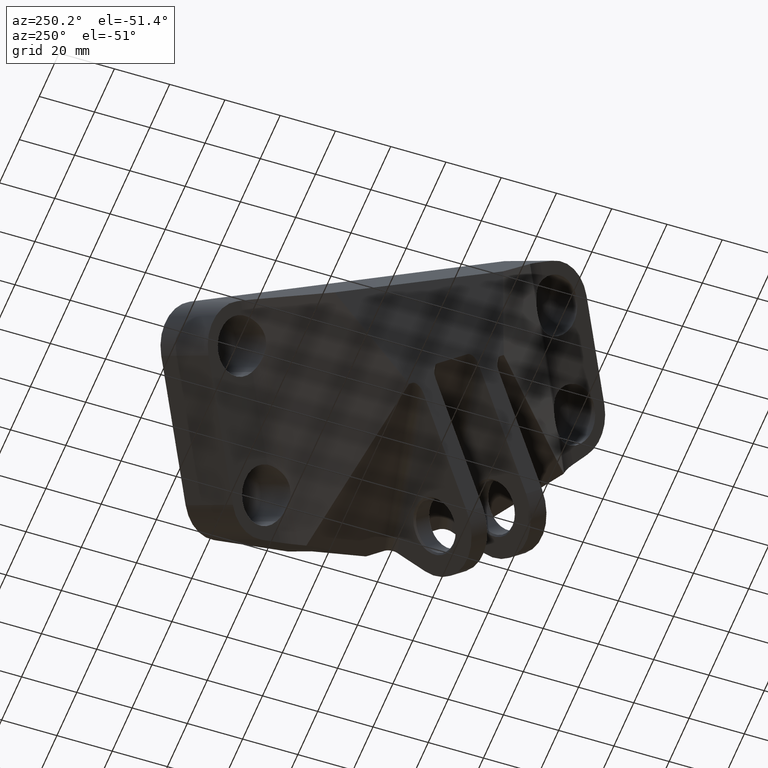
[diagram: clean part render]
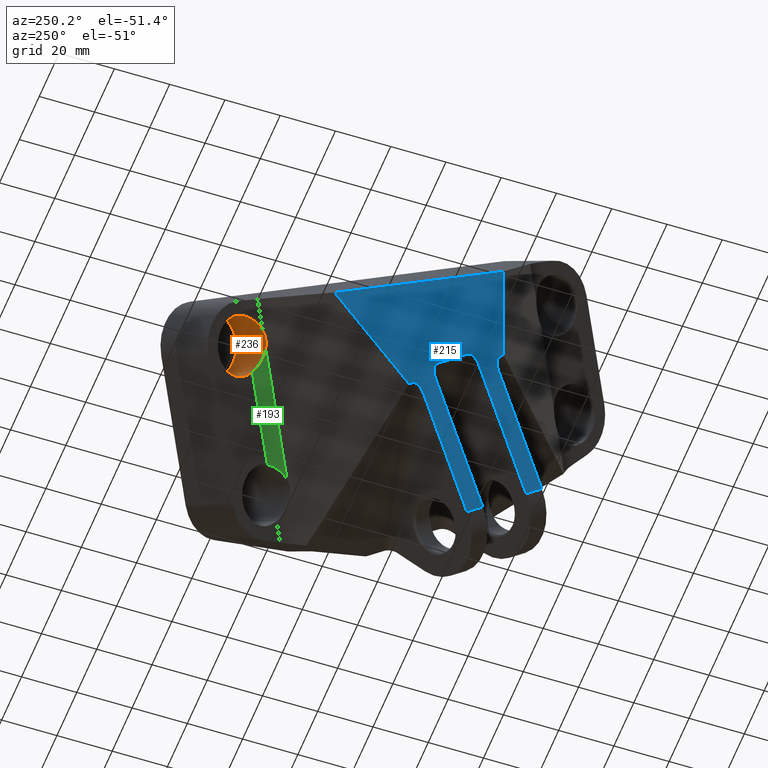
[diagram: same view with three faces highlighted in distinct colors, each labeled with its STEP entity id]
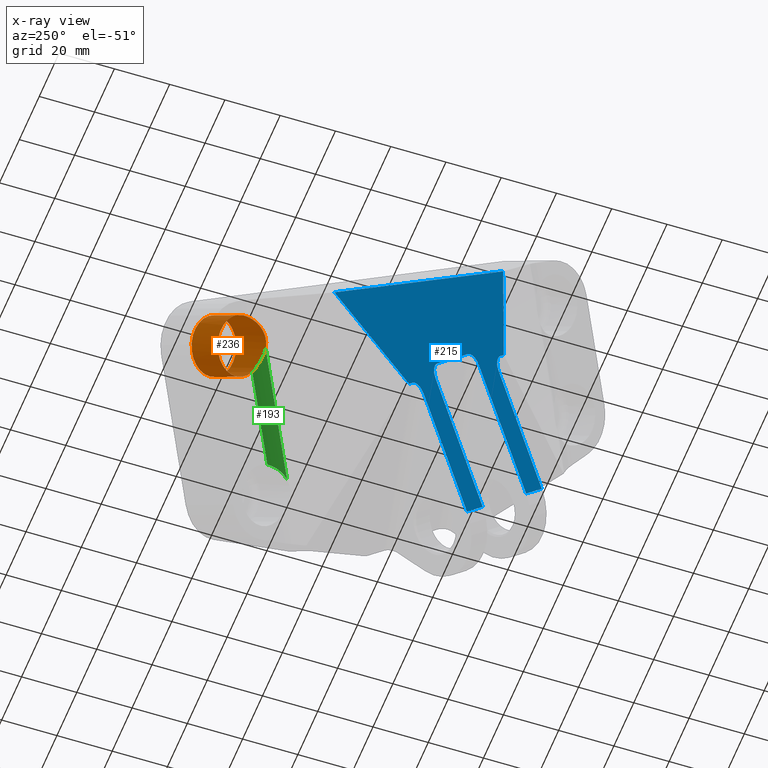
[diagram: x-ray of the same camera — body ghosted, the three highlighted faces saturated]
A machine part, auxiliary view with three faces highlighted in distinct colors.
The next image is the same camera in x-ray (body ghosted, the three faces saturated) — at least one of them is partly hidden behind the body in this view.
Their STEP definitions:

[orange] entity #236 — the highlighted cylindrical surface (bore or boss wall) has radius 10.541 mm, axis along (-0.6626, -0.4963, -0.561).
#107=ELLIPSE('',#1141,0.479200723427388,0.415);
#121=B_SPLINE_CURVE_WITH_KNOTS('',3,(#1607,#1608,#1609,#1610),.UNSPECIFIED.,
 .F.,.F.,(4,4),(0.,1.),.UNSPECIFIED.);
#123=B_SPLINE_CURVE_WITH_KNOTS('',3,(#1623,#1624,#1625,#1626),.UNSPECIFIED.,
 .F.,.F.,(4,4),(0.,1.),.UNSPECIFIED.);
#151=CYLINDRICAL_SURFACE('',#1218,0.415);
#236=ADVANCED_FACE('',(#309,#310),#151,.F.);
#309=FACE_BOUND('',#397,.T.);
#310=FACE_BOUND('',#398,.T.);
#397=EDGE_LOOP('',(#815));
#398=EDGE_LOOP('',(#816,#817,#818,#819));
#815=ORIENTED_EDGE('',*,*,#1069,.T.);
#816=ORIENTED_EDGE('',*,*,#976,.F.);
#817=ORIENTED_EDGE('',*,*,#983,.F.);
#818=ORIENTED_EDGE('',*,*,#971,.F.);
#819=ORIENTED_EDGE('',*,*,#966,.F.);
#862=VERTEX_POINT('',#1598);
#863=VERTEX_POINT('',#1600);
#865=VERTEX_POINT('',#1611);
#868=VERTEX_POINT('',#1622);
#931=VERTEX_POINT('',#1840);
#966=EDGE_CURVE('',#862,#863,#1088,.T.);
#971=EDGE_CURVE('',#863,#865,#121,.T.);
#976=EDGE_CURVE('',#868,#862,#123,.T.);
#983=EDGE_CURVE('',#865,#868,#107,.T.);
#1069=EDGE_CURVE('',#931,#931,#1109,.T.);
#1088=CIRCLE('',#1135,0.415);
#1109=CIRCLE('',#1217,0.415);
#1135=AXIS2_PLACEMENT_3D('',#1599,#1287,#1288);
#1141=AXIS2_PLACEMENT_3D('',#1639,#1310,#1311);
#1217=AXIS2_PLACEMENT_3D('',#1839,#1509,#1510);
#1218=AXIS2_PLACEMENT_3D('',#1841,#1511,#1512);
#1287=DIRECTION('',(-2.51693220908285E-016,-0.662599371078657,-0.748974013865747));
#1288=DIRECTION('',(0.,0.748974013865747,-0.662599371078657));
#1310=DIRECTION('',(0.500000000000002,-0.573827887885708,-0.648630522782135));
#1311=DIRECTION('',(0.866025403784438,0.331299685539349,0.374487006932858));
#1509=DIRECTION('',(4.77569372936415E-015,-0.662599371078666,-0.748974013865739));
#1510=DIRECTION('',(0.,0.748974013865739,-0.662599371078667));
#1511=DIRECTION('',(-4.77569372936415E-015,0.662599371078666,0.748974013865739));
#1512=DIRECTION('',(0.,-0.748974013865739,0.662599371078667));
#1598=CARTESIAN_POINT('',(-5.68443688814112,0.86001637109303,0.462000054047476));
#1599=CARTESIAN_POINT('',(-5.8290000000006,1.15137256368192,0.204244208857477));
#1600=CARTESIAN_POINT('',(-5.68443688814116,1.44272875627087,-0.0535116363324661));
#1607=CARTESIAN_POINT('',(-5.68443688814116,1.44272875627087,-0.0535116363324661));
#1608=CARTESIAN_POINT('',(-5.56439674584728,1.40931746685769,-0.0239534688366839));
#1609=CARTESIAN_POINT('',(-5.47343239851194,1.36677005855921,0.0730660730058778));
#1610=CARTESIAN_POINT('',(-5.43443688813999,1.2920967186075,0.169187667568554));
#1611=CARTESIAN_POINT('',(-5.43443688813999,1.29209671860744,0.169187667568588));
#1622=CARTESIAN_POINT('',(-5.43443688813999,1.09941989194942,0.339644241230062));
#1623=CARTESIAN_POINT('',(-5.43443688813999,1.09941989194938,0.339644241230117));
#1624=CARTESIAN_POINT('',(-5.47345893149349,0.994839827796996,0.402083386827281));
#1625=CARTESIAN_POINT('',(-5.56439835210012,0.893427213430598,0.432442282068078));
#1626=CARTESIAN_POINT('',(-5.68443688814112,0.860016371093031,0.462000054047476));
#1639=CARTESIAN_POINT('',(-5.8290000000006,1.04481742720067,0.0837988360548272));
#1839=CARTESIAN_POINT('',(-5.8290000000006,0.815519268993447,-0.175390003265843));
#1840=CARTESIAN_POINT('',(-5.8290000000006,1.12634348474773,-0.45036874226349));
#1841=CARTESIAN_POINT('',(-5.8290000000006,0.749259331885581,-0.250287404652417));

[blue] entity #215 — the highlighted planar face has unit normal (0.8434, 0.356, 0.4024).
#113=ELLIPSE('',#1178,0.190531635838227,0.125);
#114=ELLIPSE('',#1179,0.190531635838227,0.125);
#115=ELLIPSE('',#1180,0.190531635838227,0.125);
#116=ELLIPSE('',#1181,0.190531635838227,0.125);
#179=FACE_OUTER_BOUND('',#362,.T.);
#215=ADVANCED_FACE('',(#179),#261,.F.);
#261=PLANE('',#1182);
#362=EDGE_LOOP('',(#729,#730,#731,#732,#733,#734,#735,#736,#737,#738,#739,
#740,#741,#742,#743,#744));
#438=LINE('',#1636,#512);
#450=LINE('',#1690,#524);
#456=LINE('',#1708,#530);
#462=LINE('',#1724,#536);
#463=LINE('',#1730,#537);
#466=LINE('',#1741,#540);
#471=LINE('',#1757,#545);
#474=LINE('',#1766,#548);
#478=LINE('',#1774,#552);
#479=LINE('',#1776,#553);
#482=LINE('',#1782,#556);
#485=LINE('',#1787,#559);
#512=VECTOR('',#1308,1.);
#524=VECTOR('',#1344,1.);
#530=VECTOR('',#1358,0.999999999999999);
#536=VECTOR('',#1372,1.);
#537=VECTOR('',#1379,1.);
#540=VECTOR('',#1388,1.);
#545=VECTOR('',#1399,1.);
#548=VECTOR('',#1406,1.);
#552=VECTOR('',#1412,1.);
#553=VECTOR('',#1415,1.);
#556=VECTOR('',#1420,1.);
#559=VECTOR('',#1427,1.);
#729=ORIENTED_EDGE('',*,*,#1019,.T.);
#730=ORIENTED_EDGE('',*,*,#1050,.T.);
#731=ORIENTED_EDGE('',*,*,#1043,.T.);
#732=ORIENTED_EDGE('',*,*,#1004,.F.);
#733=ORIENTED_EDGE('',*,*,#1012,.T.);
#734=ORIENTED_EDGE('',*,*,#981,.F.);
#735=ORIENTED_EDGE('',*,*,#1042,.T.);
#736=ORIENTED_EDGE('',*,*,#1051,.T.);
#737=ORIENTED_EDGE('',*,*,#1022,.T.);
#738=ORIENTED_EDGE('',*,*,#1049,.F.);
#739=ORIENTED_EDGE('',*,*,#1034,.T.);
#740=ORIENTED_EDGE('',*,*,#1052,.T.);
#741=ORIENTED_EDGE('',*,*,#1038,.T.);
#742=ORIENTED_EDGE('',*,*,#1053,.T.);
#743=ORIENTED_EDGE('',*,*,#1027,.T.);
#744=ORIENTED_EDGE('',*,*,#1046,.F.);
#872=VERTEX_POINT('',#1635);
#873=VERTEX_POINT('',#1637);
#886=VERTEX_POINT('',#1689);
#887=VERTEX_POINT('',#1691);
#896=VERTEX_POINT('',#1723);
#897=VERTEX_POINT('',#1725);
#899=VERTEX_POINT('',#1731);
#900=VERTEX_POINT('',#1732);
#904=VERTEX_POINT('',#1742);
#905=VERTEX_POINT('',#1743);
#911=VERTEX_POINT('',#1756);
#912=VERTEX_POINT('',#1758);
#915=VERTEX_POINT('',#1765);
#916=VERTEX_POINT('',#1767);
#918=VERTEX_POINT('',#1773);
#919=VERTEX_POINT('',#1777);
#981=EDGE_CURVE('',#872,#873,#438,.T.);
#1004=EDGE_CURVE('',#886,#887,#450,.T.);
#1012=EDGE_CURVE('',#886,#873,#456,.T.);
#1019=EDGE_CURVE('',#897,#896,#462,.T.);
#1022=EDGE_CURVE('',#899,#900,#463,.T.);
#1027=EDGE_CURVE('',#904,#905,#466,.T.);
#1034=EDGE_CURVE('',#912,#911,#471,.T.);
#1038=EDGE_CURVE('',#916,#915,#474,.T.);
#1042=EDGE_CURVE('',#872,#918,#478,.T.);
#1043=EDGE_CURVE('',#919,#887,#479,.T.);
#1046=EDGE_CURVE('',#897,#905,#482,.T.);
#1049=EDGE_CURVE('',#912,#900,#485,.T.);
#1050=EDGE_CURVE('',#896,#919,#113,.T.);
#1051=EDGE_CURVE('',#918,#899,#114,.T.);
#1052=EDGE_CURVE('',#911,#916,#115,.T.);
#1053=EDGE_CURVE('',#915,#904,#116,.T.);
#1178=AXIS2_PLACEMENT_3D('',#1789,#1430,#1431);
#1179=AXIS2_PLACEMENT_3D('',#1790,#1432,#1433);
#1180=AXIS2_PLACEMENT_3D('',#1791,#1434,#1435);
#1181=AXIS2_PLACEMENT_3D('',#1792,#1436,#1437);
#1182=AXIS2_PLACEMENT_3D('',#1793,#1438,#1439);
#1308=DIRECTION('',(-0.430836289233121,0.484896353248509,-0.761088443274586));
#1344=DIRECTION('',(-0.430836289233119,-0.48489635324851,0.761088443274586));
#1358=DIRECTION('',(-0.991687246134804,0.0691382488836841,-0.108518700668896));
#1372=DIRECTION('',(0.,0.537322892172191,-0.843376611928332));
#1379=DIRECTION('',(0.,-0.537322892172191,0.843376611928332));
#1388=DIRECTION('',(0.,-0.537322892172191,0.843376611928332));
#1399=DIRECTION('',(0.,0.537322892172191,-0.843376611928332));
#1406=DIRECTION('',(1.,0.,0.));
#1412=DIRECTION('',(1.,-4.74237757376405E-016,7.44358818303299E-016));
#1415=DIRECTION('',(1.,1.60116216146878E-015,-2.513168038362E-015));
#1420=DIRECTION('',(-1.,0.,0.));
#1427=DIRECTION('',(-1.,0.,0.));
#1430=DIRECTION('',(0.,-0.843376611928332,-0.537322892172191));
#1431=DIRECTION('',(0.,-0.537322892172191,0.843376611928332));
#1432=DIRECTION('',(0.,-0.843376611928332,-0.537322892172191));
#1433=DIRECTION('',(0.,0.537322892172191,-0.843376611928332));
#1434=DIRECTION('',(0.,-0.843376611928332,-0.537322892172191));
#1435=DIRECTION('',(0.,-0.537322892172191,0.843376611928332));
#1436=DIRECTION('',(0.,-0.843376611928332,-0.537322892172191));
#1437=DIRECTION('',(0.,-0.537322892172191,0.843376611928332));
#1438=DIRECTION('',(0.,-0.843376611928332,-0.537322892172191));
#1439=DIRECTION('',(0.,0.537322892172191,-0.843376611928332));
#1635=CARTESIAN_POINT('',(-3.81535664814024,1.08860775816167,1.59728537164721));
#1636=CARTESIAN_POINT('',(-5.52216633690361,3.00958288131978,-1.4178578775418));
#1637=CARTESIAN_POINT('',(-4.51700987992698,1.87830236337708,0.357788655041236));
#1689=CARTESIAN_POINT('',(-1.49894450239873,1.66788949779667,0.688050574390984));
#1690=CARTESIAN_POINT('',(-0.732248558258541,2.53078818264457,-0.666346529969171));
#1691=CARTESIAN_POINT('',(-2.01364335185974,1.08860775816167,1.59728537164721));
#1708=CARTESIAN_POINT('',(-5.71648344890362,1.96192701667835,0.226532239574202));
#1723=CARTESIAN_POINT('',(-2.202,0.98623074854278,1.75797529714561));
#1724=CARTESIAN_POINT('',(-2.202,2.23190457724258,-0.197221826449043));
#1725=CARTESIAN_POINT('',(-2.202,0.0826130085538108,3.17628462126428));
#1730=CARTESIAN_POINT('',(-3.627,2.23190457724258,-0.197221826449043));
#1731=CARTESIAN_POINT('',(-3.627,0.98623074854278,1.75797529714562));
#1732=CARTESIAN_POINT('',(-3.627,0.0826130085538108,3.17628462126428));
#1741=CARTESIAN_POINT('',(-2.502,2.23190457724258,-0.197221826449043));
#1742=CARTESIAN_POINT('',(-2.502,1.0681323562379,1.62942335674689));
#1743=CARTESIAN_POINT('',(-2.502,0.0826130085538108,3.17628462126428));
#1756=CARTESIAN_POINT('',(-3.327,1.0681323562379,1.62942335674689));
#1757=CARTESIAN_POINT('',(-3.327,2.23190457724258,-0.197221826449043));
#1758=CARTESIAN_POINT('',(-3.327,0.0826130085538108,3.17628462126428));
#1765=CARTESIAN_POINT('',(-2.627,1.17050936585679,1.46873343124848));
#1766=CARTESIAN_POINT('',(0.0854999999999957,1.17050936585679,1.46873343124848));
#1767=CARTESIAN_POINT('',(-3.202,1.17050936585679,1.46873343124848));
#1773=CARTESIAN_POINT('',(-3.752,1.08860775816167,1.59728537164721));
#1774=CARTESIAN_POINT('',(0.0854999999999957,1.08860775816167,1.59728537164721));
#1776=CARTESIAN_POINT('',(0.0854999999999957,1.08860775816168,1.5972853716472));
#1777=CARTESIAN_POINT('',(-2.077,1.08860775816167,1.59728537164721));
#1782=CARTESIAN_POINT('',(0.0854999999999957,0.0826130085538108,3.17628462126428));
#1787=CARTESIAN_POINT('',(0.0854999999999957,0.0826130085538108,3.17628462126428));
#1789=CARTESIAN_POINT('',(-2.077,0.98623074854278,1.75797529714561));
#1790=CARTESIAN_POINT('',(-3.752,0.98623074854278,1.75797529714562));
#1791=CARTESIAN_POINT('',(-3.202,1.0681323562379,1.62942335674689));
#1792=CARTESIAN_POINT('',(-2.627,1.0681323562379,1.62942335674689));
#1793=CARTESIAN_POINT('',(0.0854999999999957,2.23190457724258,-0.197221826449043));

[green] entity #193 — the highlighted cylindrical surface (partial cylindrical patch) has radius 12.7 mm, axis along (0.749, -0.439, -0.4963).
#122=B_SPLINE_CURVE_WITH_KNOTS('',3,(#1616,#1617,#1618,#1619),.UNSPECIFIED.,
 .F.,.F.,(4,4),(0.,1.),.UNSPECIFIED.);
#123=B_SPLINE_CURVE_WITH_KNOTS('',3,(#1623,#1624,#1625,#1626),.UNSPECIFIED.,
 .F.,.F.,(4,4),(0.,1.),.UNSPECIFIED.);
#134=CYLINDRICAL_SURFACE('',#1139,0.499999999999995);
#161=FACE_OUTER_BOUND('',#336,.T.);
#193=ADVANCED_FACE('',(#161),#134,.F.);
#336=EDGE_LOOP('',(#605,#606,#607,#608));
#428=LINE('',#1597,#502);
#434=LINE('',#1621,#508);
#502=VECTOR('',#1286,1.);
#508=VECTOR('',#1300,1.);
#605=ORIENTED_EDGE('',*,*,#965,.T.);
#606=ORIENTED_EDGE('',*,*,#974,.T.);
#607=ORIENTED_EDGE('',*,*,#975,.F.);
#608=ORIENTED_EDGE('',*,*,#976,.T.);
#861=VERTEX_POINT('',#1596);
#862=VERTEX_POINT('',#1598);
#867=VERTEX_POINT('',#1620);
#868=VERTEX_POINT('',#1622);
#965=EDGE_CURVE('',#862,#861,#428,.T.);
#974=EDGE_CURVE('',#861,#867,#122,.T.);
#975=EDGE_CURVE('',#868,#867,#434,.T.);
#976=EDGE_CURVE('',#868,#862,#123,.T.);
#1139=AXIS2_PLACEMENT_3D('',#1627,#1301,#1302);
#1286=DIRECTION('',(0.,-0.748974013865747,0.662599371078657));
#1300=DIRECTION('',(0.,-0.748974013865747,0.662599371078657));
#1301=DIRECTION('',(0.,-0.748974013865747,0.662599371078657));
#1302=DIRECTION('',(0.,-0.662599371078657,-0.748974013865747));
#1596=CARTESIAN_POINT('',(-5.68443688814112,-0.0927018610035929,1.30484705503241));
#1597=CARTESIAN_POINT('',(-5.68443688814109,3.0422700997012,-1.4685875515848));
#1598=CARTESIAN_POINT('',(-5.68443688814112,0.86001637109303,0.462000054047476));
#1616=CARTESIAN_POINT('',(-5.68443688814112,-0.0927018610035929,1.30484705503241));
#1617=CARTESIAN_POINT('',(-5.56439674584727,-0.126113150416769,1.3344052225282));
#1618=CARTESIAN_POINT('',(-5.47343239851194,-0.168660558715243,1.43142476437074));
#1619=CARTESIAN_POINT('',(-5.43443688813999,-0.243333898666934,1.5275463589334));
#1620=CARTESIAN_POINT('',(-5.43443688813999,-0.243333898666991,1.52754635893344));
#1621=CARTESIAN_POINT('',(-5.43443688813999,3.08665584129771,-1.41841580604295));
#1622=CARTESIAN_POINT('',(-5.43443688813999,1.09941989194942,0.339644241230062));
#1623=CARTESIAN_POINT('',(-5.43443688813999,1.09941989194938,0.339644241230117));
#1624=CARTESIAN_POINT('',(-5.47345893149349,0.994839827796996,0.402083386827281));
#1625=CARTESIAN_POINT('',(-5.56439835210012,0.893427213430598,0.432442282068078));
#1626=CARTESIAN_POINT('',(-5.68443688814112,0.860016371093031,0.462000054047476));
#1627=CARTESIAN_POINT('',(-5.68443688814004,3.37356978524055,-1.0941005446519));